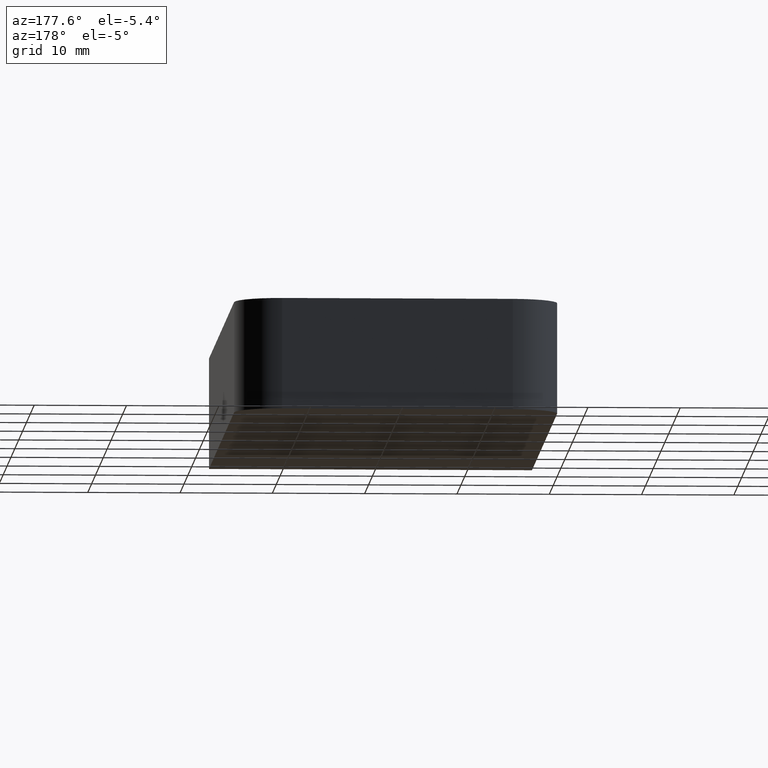
[diagram: clean part render]
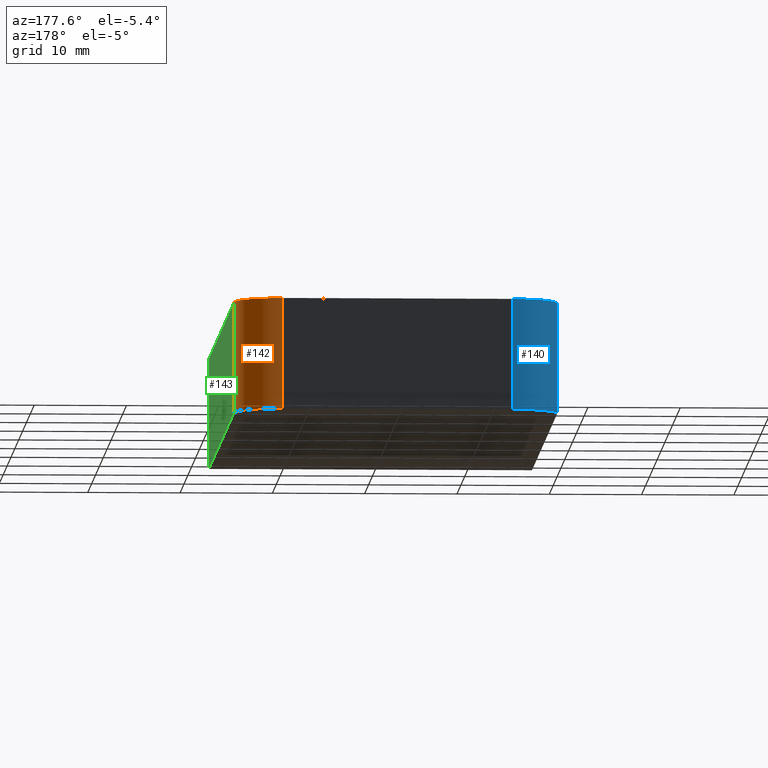
[diagram: same view with three faces highlighted in distinct colors, each labeled with its STEP entity id]
A machine part, auxiliary view with three faces highlighted in distinct colors.
Their STEP definitions:

[orange] entity #142 — the highlighted cylindrical surface (partial cylindrical patch) has radius 5 mm, axis along (0, 0, 1).
#17=CYLINDRICAL_SURFACE('',#173,5.);
#22=FACE_OUTER_BOUND('',#30,.T.);
#30=EDGE_LOOP('',(#114,#115,#116,#117));
#35=CIRCLE('',#168,5.);
#37=CIRCLE('',#174,5.);
#47=LINE('',#245,#61);
#48=LINE('',#249,#62);
#61=VECTOR('',#203,10.);
#62=VECTOR('',#208,10.);
#67=VERTEX_POINT('',#221);
#71=VERTEX_POINT('',#229);
#75=VERTEX_POINT('',#243);
#76=VERTEX_POINT('',#247);
#83=EDGE_CURVE('',#67,#71,#35,.T.);
#90=EDGE_CURVE('',#71,#75,#47,.T.);
#91=EDGE_CURVE('',#75,#76,#37,.T.);
#92=EDGE_CURVE('',#67,#76,#48,.T.);
#114=ORIENTED_EDGE('',*,*,#91,.T.);
#115=ORIENTED_EDGE('',*,*,#92,.F.);
#116=ORIENTED_EDGE('',*,*,#83,.T.);
#117=ORIENTED_EDGE('',*,*,#90,.T.);
#142=ADVANCED_FACE('',(#22),#17,.T.);
#168=AXIS2_PLACEMENT_3D('',#231,#188,#189);
#173=AXIS2_PLACEMENT_3D('',#246,#204,#205);
#174=AXIS2_PLACEMENT_3D('',#248,#206,#207);
#188=DIRECTION('center_axis',(0.,0.,1.));
#189=DIRECTION('ref_axis',(1.,0.,0.));
#203=DIRECTION('',(0.,0.,1.));
#204=DIRECTION('center_axis',(0.,0.,1.));
#205=DIRECTION('ref_axis',(1.,0.,0.));
#206=DIRECTION('center_axis',(0.,0.,-1.));
#207=DIRECTION('ref_axis',(1.,0.,0.));
#208=DIRECTION('',(0.,0.,1.));
#221=CARTESIAN_POINT('',(17.5,30.,-6.));
#229=CARTESIAN_POINT('',(12.5,35.,-6.));
#231=CARTESIAN_POINT('Origin',(12.5,30.,-6.));
#243=CARTESIAN_POINT('',(12.5,35.,6.));
#245=CARTESIAN_POINT('',(12.5,35.,0.));
#246=CARTESIAN_POINT('Origin',(12.5,30.,0.));
#247=CARTESIAN_POINT('',(17.5,30.,6.));
#248=CARTESIAN_POINT('Origin',(12.5,30.,6.));
#249=CARTESIAN_POINT('',(17.5,30.,0.));

[blue] entity #140 — the highlighted cylindrical surface (partial cylindrical patch) has radius 5 mm, axis along (0, 0, 1).
#16=CYLINDRICAL_SURFACE('',#170,5.);
#20=FACE_OUTER_BOUND('',#28,.T.);
#28=EDGE_LOOP('',(#106,#107,#108,#109));
#34=CIRCLE('',#167,5.);
#36=CIRCLE('',#171,5.);
#43=LINE('',#236,#57);
#45=LINE('',#241,#59);
#57=VECTOR('',#193,10.);
#59=VECTOR('',#199,10.);
#69=VERTEX_POINT('',#225);
#70=VERTEX_POINT('',#227);
#73=VERTEX_POINT('',#234);
#74=VERTEX_POINT('',#239);
#81=EDGE_CURVE('',#70,#69,#34,.T.);
#85=EDGE_CURVE('',#69,#73,#43,.T.);
#87=EDGE_CURVE('',#73,#74,#36,.T.);
#88=EDGE_CURVE('',#70,#74,#45,.T.);
#106=ORIENTED_EDGE('',*,*,#87,.T.);
#107=ORIENTED_EDGE('',*,*,#88,.F.);
#108=ORIENTED_EDGE('',*,*,#81,.T.);
#109=ORIENTED_EDGE('',*,*,#85,.T.);
#140=ADVANCED_FACE('',(#20),#16,.T.);
#167=AXIS2_PLACEMENT_3D('',#228,#185,#186);
#170=AXIS2_PLACEMENT_3D('',#238,#195,#196);
#171=AXIS2_PLACEMENT_3D('',#240,#197,#198);
#185=DIRECTION('center_axis',(0.,0.,1.));
#186=DIRECTION('ref_axis',(8.88178419700126E-16,1.,0.));
#193=DIRECTION('',(0.,0.,1.));
#195=DIRECTION('center_axis',(0.,0.,1.));
#196=DIRECTION('ref_axis',(8.88178419700126E-16,1.,0.));
#197=DIRECTION('center_axis',(0.,0.,-1.));
#198=DIRECTION('ref_axis',(8.88178419700126E-16,1.,0.));
#199=DIRECTION('',(0.,0.,1.));
#225=CARTESIAN_POINT('',(-17.5,30.,-6.));
#227=CARTESIAN_POINT('',(-12.5,35.,-6.));
#228=CARTESIAN_POINT('Origin',(-12.5,30.,-6.));
#234=CARTESIAN_POINT('',(-17.5,30.,6.));
#236=CARTESIAN_POINT('',(-17.5,30.,0.));
#238=CARTESIAN_POINT('Origin',(-12.5,30.,0.));
#239=CARTESIAN_POINT('',(-12.5,35.,6.));
#240=CARTESIAN_POINT('Origin',(-12.5,30.,6.));
#241=CARTESIAN_POINT('',(-12.5,35.,0.));

[green] entity #143 — the highlighted planar face has unit normal (1, 0, 0).
#23=FACE_OUTER_BOUND('',#31,.T.);
#31=EDGE_LOOP('',(#118,#119,#120,#121));
#38=LINE('',#222,#52);
#48=LINE('',#249,#62);
#49=LINE('',#252,#63);
#50=LINE('',#253,#64);
#52=VECTOR('',#182,10.);
#62=VECTOR('',#208,10.);
#63=VECTOR('',#211,10.);
#64=VECTOR('',#212,10.);
#66=VERTEX_POINT('',#220);
#67=VERTEX_POINT('',#221);
#76=VERTEX_POINT('',#247);
#77=VERTEX_POINT('',#251);
#78=EDGE_CURVE('',#66,#67,#38,.T.);
#92=EDGE_CURVE('',#67,#76,#48,.T.);
#93=EDGE_CURVE('',#76,#77,#49,.T.);
#94=EDGE_CURVE('',#66,#77,#50,.T.);
#118=ORIENTED_EDGE('',*,*,#93,.T.);
#119=ORIENTED_EDGE('',*,*,#94,.F.);
#120=ORIENTED_EDGE('',*,*,#78,.T.);
#121=ORIENTED_EDGE('',*,*,#92,.T.);
#135=PLANE('',#175);
#143=ADVANCED_FACE('',(#23),#135,.T.);
#175=AXIS2_PLACEMENT_3D('',#250,#209,#210);
#182=DIRECTION('',(-1.70803542250024E-16,1.,0.));
#208=DIRECTION('',(0.,0.,1.));
#209=DIRECTION('center_axis',(1.,1.70803542250024E-16,0.));
#210=DIRECTION('ref_axis',(0.,0.,-1.));
#211=DIRECTION('',(1.70803542250024E-16,-1.,0.));
#212=DIRECTION('',(0.,0.,1.));
#220=CARTESIAN_POINT('',(17.5,-35.,-6.));
#221=CARTESIAN_POINT('',(17.5,30.,-6.));
#222=CARTESIAN_POINT('',(17.5,-35.,-6.));
#247=CARTESIAN_POINT('',(17.5,30.,6.));
#249=CARTESIAN_POINT('',(17.5,30.,0.));
#250=CARTESIAN_POINT('Origin',(17.5,30.,0.));
#251=CARTESIAN_POINT('',(17.5,-35.,6.));
#252=CARTESIAN_POINT('',(17.5,-35.,6.));
#253=CARTESIAN_POINT('',(17.5,-35.,0.));